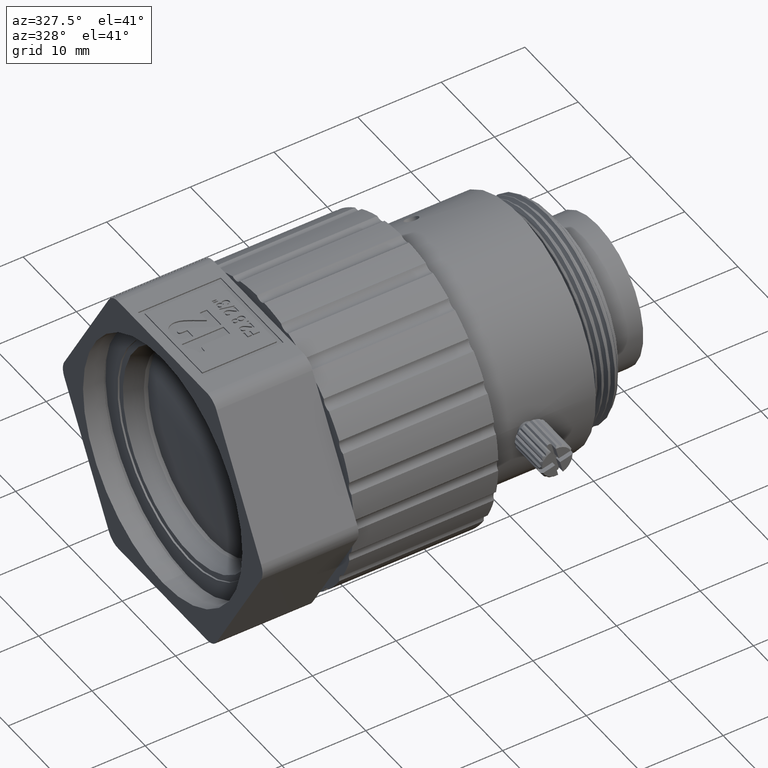
[diagram: clean part render]
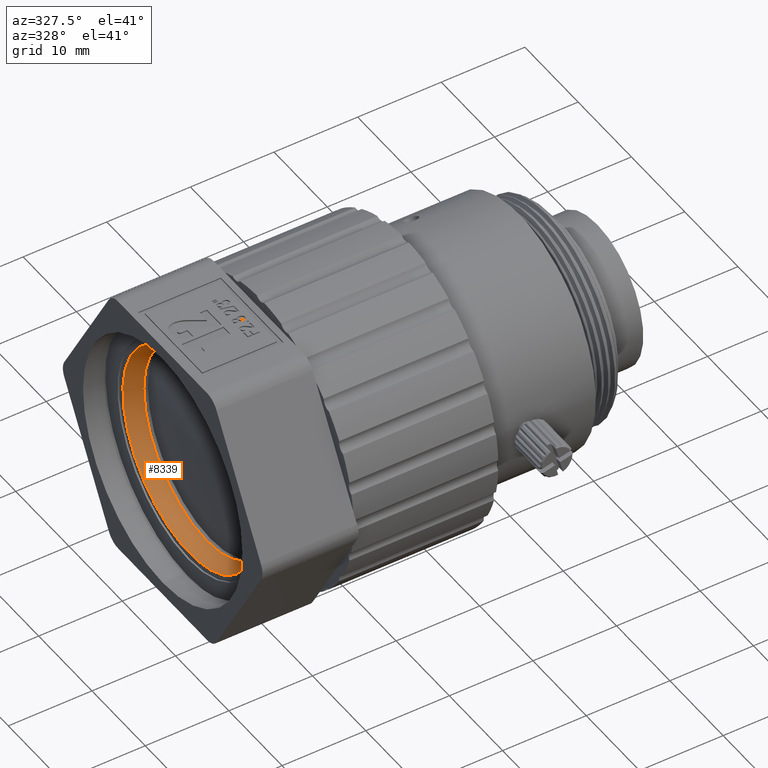
[diagram: same view with one face highlighted and labeled with its STEP entity id]
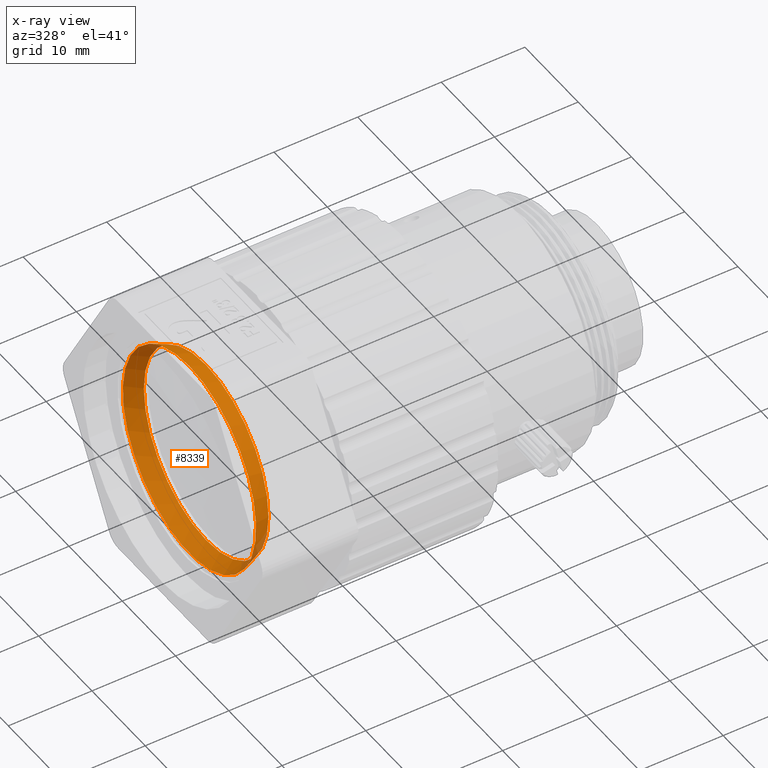
[diagram: x-ray of the same camera — body ghosted, the highlighted face saturated]
A machine part, auxiliary view. The second image highlights one B-rep face of the part: STEP entity #8339.
The next image is the same camera in x-ray: the body ghosted, the highlighted face saturated — about 3% of this face is hidden behind the body in this view.
In plain terms, the highlighted conical surface has half-angle 21.801 deg.
Its self-contained STEP definition (entity closure, byte-faithful):
#401 = EDGE_LOOP ( 'NONE', ( #13508 ) ) ;
#668 = CONICAL_SURFACE ( 'NONE', #10894, 12.50000000020399149, 0.3805063771135036577 ) ;
#990 = CARTESIAN_POINT ( 'NONE',  ( 10427.89705335040526, -3043.346037136861469, 11.70000000000070806 ) ) ;
#1589 = EDGE_CURVE ( 'NONE', #8507, #8507, #8740, .T. ) ;
#2583 = DIRECTION ( 'NONE',  ( 0.000000000000000000, 0.000000000000000000, 1.000000000000000000 ) ) ;
#2775 = DIRECTION ( 'NONE',  ( -1.000000000000000000, 0.000000000000000000, 0.000000000000000000 ) ) ;
#2937 = AXIS2_PLACEMENT_3D ( 'NONE', #3931, #2775, #7195 ) ;
#3302 = CIRCLE ( 'NONE', #7931, 11.70000000000070806 ) ;
#3467 = EDGE_LOOP ( 'NONE', ( #9405 ) ) ;
#3931 = CARTESIAN_POINT ( 'NONE',  ( 10425.89705334990322, -3043.346037136861469, 0.000000000000000000 ) ) ;
#4047 = VERTEX_POINT ( 'NONE', #990 ) ;
#6060 = CARTESIAN_POINT ( 'NONE',  ( 10425.89705334990322, -3043.346037136861469, 0.000000000000000000 ) ) ;
#6925 = CARTESIAN_POINT ( 'NONE',  ( 10427.89705335040526, -3043.346037136861469, 0.000000000000000000 ) ) ;
#7154 = FACE_OUTER_BOUND ( 'NONE', #401, .T. ) ;
#7195 = DIRECTION ( 'NONE',  ( 0.000000000000000000, 0.000000000000000000, 1.000000000000000000 ) ) ;
#7578 = DIRECTION ( 'NONE',  ( 0.000000000000000000, 0.000000000000000000, 1.000000000000000000 ) ) ;
#7931 = AXIS2_PLACEMENT_3D ( 'NONE', #6925, #8248, #2583 ) ;
#8248 = DIRECTION ( 'NONE',  ( -1.000000000000000000, 0.000000000000000000, 0.000000000000000000 ) ) ;
#8339 = ADVANCED_FACE ( 'NONE', ( #10818, #7154 ), #668, .F. ) ;
#8507 = VERTEX_POINT ( 'NONE', #11791 ) ;
#8740 = CIRCLE ( 'NONE', #2937, 12.50000000020399149 ) ;
#9405 = ORIENTED_EDGE ( 'NONE', *, *, #13087, .F. ) ;
#10526 = DIRECTION ( 'NONE',  ( -1.000000000000000000, 0.000000000000000000, 0.000000000000000000 ) ) ;
#10818 = FACE_BOUND ( 'NONE', #3467, .T. ) ;
#10894 = AXIS2_PLACEMENT_3D ( 'NONE', #6060, #10526, #7578 ) ;
#11791 = CARTESIAN_POINT ( 'NONE',  ( 10425.89705334990322, -3043.346037136861469, 12.50000000020399149 ) ) ;
#13087 = EDGE_CURVE ( 'NONE', #4047, #4047, #3302, .T. ) ;
#13508 = ORIENTED_EDGE ( 'NONE', *, *, #1589, .T. ) ;